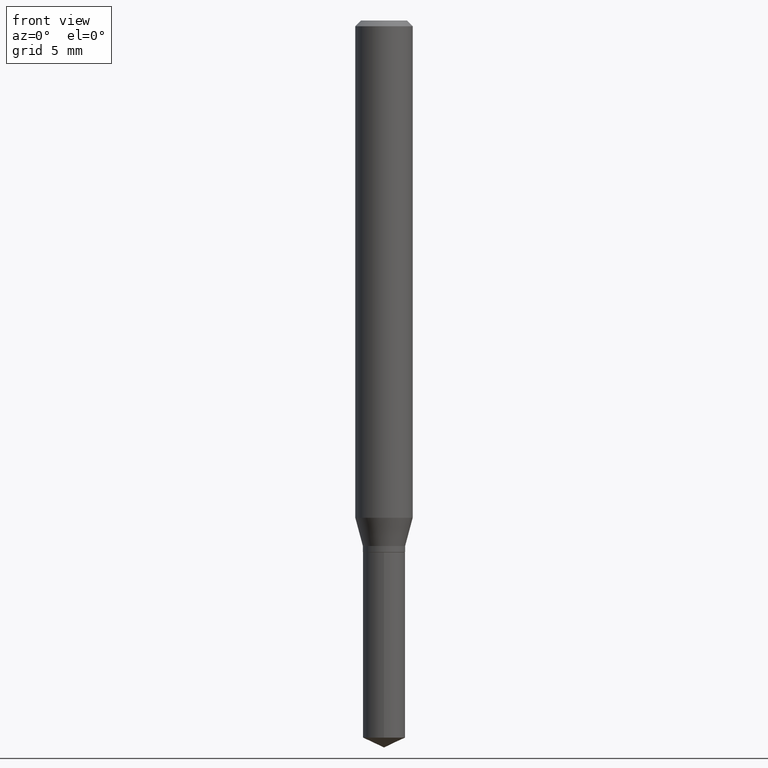
[diagram: clean part render]
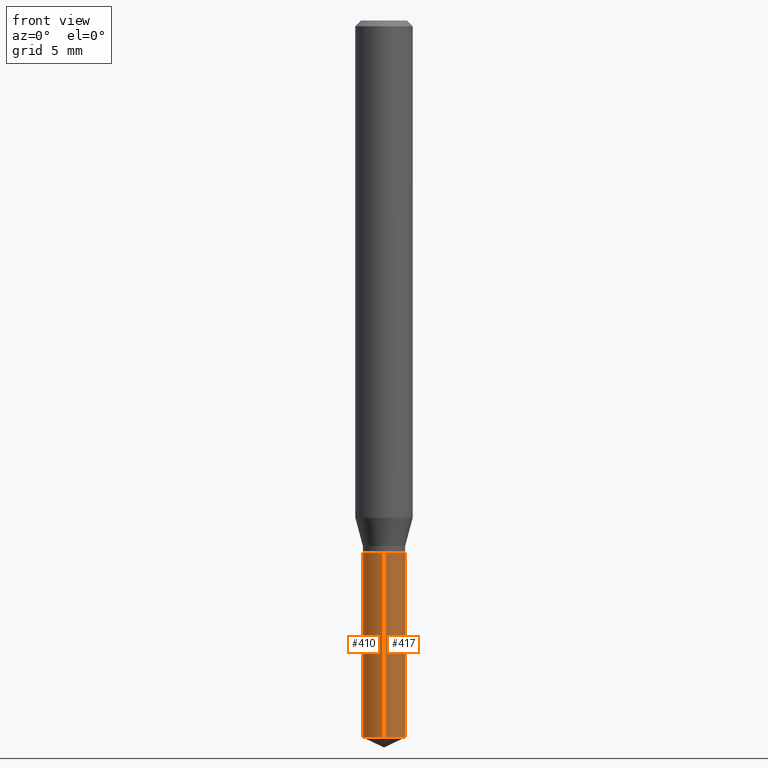
[diagram: same view with one multi-face feature highlighted, each face labeled with its STEP entity id]
A machine part, front view. The highlighted faces form ONE feature: a constant-radius fillet chain: 2 tangent blend faces with common blend radius 1.1049 mm. The faces share edges in the B-rep.
Their STEP definitions:
[1] entity #417 (Cylinder):
#4 = CARTESIAN_POINT ( 'NONE',  ( 3.090860900556795513E-16, 0.04349999999999483447, -1.475815616870258085 ) ) ;
#8 = DIRECTION ( 'NONE',  ( -6.982962677686265133E-15, -1.000000000000000000, 3.140055165131337128E-15 ) ) ;
#87 = AXIS2_PLACEMENT_3D ( 'NONE', #460, #267, #8 ) ;
#101 = DIRECTION ( 'NONE',  ( -2.445458899330790108E-29, 3.491495526022433599E-15, 1.000000000000000000 ) ) ;
#107 = DIRECTION ( 'NONE',  ( -2.445458899330790108E-29, 3.491495526022433599E-15, 1.000000000000000000 ) ) ;
#122 = VECTOR ( 'NONE', #107, 39.37007874015748143 ) ;
#123 = ORIENTED_EDGE ( 'NONE', *, *, #232, .T. ) ;
#157 = EDGE_LOOP ( 'NONE', ( #123, #363, #190, #414 ) ) ;
#162 = EDGE_CURVE ( 'NONE', #193, #386, #376, .T. ) ;
#174 = AXIS2_PLACEMENT_3D ( 'NONE', #319, #282, #436 ) ;
#181 = DIRECTION ( 'NONE',  ( -2.445458899330790108E-29, 3.491495526022433205E-15, 1.000000000000000000 ) ) ;
#190 = ORIENTED_EDGE ( 'NONE', *, *, #484, .F. ) ;
#193 = VERTEX_POINT ( 'NONE', #485 ) ;
#207 = VECTOR ( 'NONE', #101, 39.37007874015748143 ) ;
#215 = VERTEX_POINT ( 'NONE', #339 ) ;
#222 = CARTESIAN_POINT ( 'NONE',  ( -3.037588764793257451E-16, -0.04350000000000382033, -1.094499999999999806 ) ) ;
#228 = EDGE_CURVE ( 'NONE', #467, #215, #377, .T. ) ;
#232 = EDGE_CURVE ( 'NONE', #193, #467, #404, .T. ) ;
#249 = AXIS2_PLACEMENT_3D ( 'NONE', #489, #181, #415 ) ;
#264 = CARTESIAN_POINT ( 'NONE',  ( 3.090860900556702329E-16, 0.04349999999999616673, -1.094500000000000028 ) ) ;
#267 = DIRECTION ( 'NONE',  ( -2.445458899330790108E-29, 3.491495526022433205E-15, 1.000000000000000000 ) ) ;
#279 = CARTESIAN_POINT ( 'NONE',  ( -3.037588764793257451E-16, -0.04350000000000382033, -1.094499999999999806 ) ) ;
#282 = DIRECTION ( 'NONE',  ( -2.445458899330790108E-29, 3.491495526022433205E-15, 1.000000000000000000 ) ) ;
#305 = CIRCLE ( 'NONE', #87, 0.04349999999999999700 ) ;
#319 = CARTESIAN_POINT ( 'NONE',  ( 2.676565608369631794E-29, -3.821426325363822773E-15, -1.094499999999999806 ) ) ;
#339 = CARTESIAN_POINT ( 'NONE',  ( 3.090860900556796499E-16, 0.04349999999999616673, -1.094500000000000028 ) ) ;
#362 = CYLINDRICAL_SURFACE ( 'NONE', #174, 0.04349999999999999700 ) ;
#363 = ORIENTED_EDGE ( 'NONE', *, *, #228, .T. ) ;
#376 = LINE ( 'NONE', #222, #122 ) ;
#377 = LINE ( 'NONE', #264, #207 ) ;
#386 = VERTEX_POINT ( 'NONE', #279 ) ;
#404 = CIRCLE ( 'NONE', #249, 0.04349999999999999700 ) ;
#414 = ORIENTED_EDGE ( 'NONE', *, *, #162, .F. ) ;
#415 = DIRECTION ( 'NONE',  ( -6.982962677686265133E-15, -1.000000000000000000, 6.280110330262674256E-15 ) ) ;
#417 = ADVANCED_FACE ( 'NONE', ( #430 ), #362, .T. ) ;
#430 = FACE_OUTER_BOUND ( 'NONE', #157, .T. ) ;
#436 = DIRECTION ( 'NONE',  ( -6.982962677686265133E-15, -1.000000000000000000, 3.140055165131337128E-15 ) ) ;
#460 = CARTESIAN_POINT ( 'NONE',  ( 2.676565608369631794E-29, -3.821426325363822773E-15, -1.094499999999999806 ) ) ;
#467 = VERTEX_POINT ( 'NONE', #4 ) ;
#484 = EDGE_CURVE ( 'NONE', #386, #215, #305, .T. ) ;
#485 = CARTESIAN_POINT ( 'NONE',  ( -3.037588764793164760E-16, -0.04350000000000515260, -1.475815616870257418 ) ) ;
#489 = CARTESIAN_POINT ( 'NONE',  ( 3.609057277098813731E-29, -5.152788095668811467E-15, -1.475815616870257641 ) ) ;
[2] entity #410 (Cylinder):
#4 = CARTESIAN_POINT ( 'NONE',  ( 3.090860900556795513E-16, 0.04349999999999483447, -1.475815616870258085 ) ) ;
#18 = CARTESIAN_POINT ( 'NONE',  ( 2.676565608369631794E-29, -3.821426325363822773E-15, -1.094499999999999806 ) ) ;
#21 = CIRCLE ( 'NONE', #119, 0.04349999999999999700 ) ;
#33 = ORIENTED_EDGE ( 'NONE', *, *, #360, .F. ) ;
#35 = DIRECTION ( 'NONE',  ( -2.445458899330790108E-29, 3.491495526022433205E-15, 1.000000000000000000 ) ) ;
#77 = DIRECTION ( 'NONE',  ( -2.445458899330790108E-29, 3.491495526022433205E-15, 1.000000000000000000 ) ) ;
#101 = DIRECTION ( 'NONE',  ( -2.445458899330790108E-29, 3.491495526022433599E-15, 1.000000000000000000 ) ) ;
#107 = DIRECTION ( 'NONE',  ( -2.445458899330790108E-29, 3.491495526022433599E-15, 1.000000000000000000 ) ) ;
#119 = AXIS2_PLACEMENT_3D ( 'NONE', #18, #77, #196 ) ;
#122 = VECTOR ( 'NONE', #107, 39.37007874015748143 ) ;
#143 = DIRECTION ( 'NONE',  ( -6.982962677686265133E-15, -1.000000000000000000, 6.280110330262674256E-15 ) ) ;
#153 = ORIENTED_EDGE ( 'NONE', *, *, #228, .F. ) ;
#161 = DIRECTION ( 'NONE',  ( -2.445458899330790108E-29, 3.491495526022433205E-15, 1.000000000000000000 ) ) ;
#162 = EDGE_CURVE ( 'NONE', #193, #386, #376, .T. ) ;
#164 = CARTESIAN_POINT ( 'NONE',  ( 2.676565608369631794E-29, -3.821426325363822773E-15, -1.094499999999999806 ) ) ;
#193 = VERTEX_POINT ( 'NONE', #485 ) ;
#196 = DIRECTION ( 'NONE',  ( -6.982962677686265133E-15, -1.000000000000000000, 3.140055165131337128E-15 ) ) ;
#203 = CIRCLE ( 'NONE', #452, 0.04349999999999999700 ) ;
#207 = VECTOR ( 'NONE', #101, 39.37007874015748143 ) ;
#215 = VERTEX_POINT ( 'NONE', #339 ) ;
#222 = CARTESIAN_POINT ( 'NONE',  ( -3.037588764793257451E-16, -0.04350000000000382033, -1.094499999999999806 ) ) ;
#227 = EDGE_LOOP ( 'NONE', ( #153, #269, #353, #33 ) ) ;
#228 = EDGE_CURVE ( 'NONE', #467, #215, #377, .T. ) ;
#258 = CARTESIAN_POINT ( 'NONE',  ( 3.609057277098813731E-29, -5.152788095668811467E-15, -1.475815616870257641 ) ) ;
#264 = CARTESIAN_POINT ( 'NONE',  ( 3.090860900556702329E-16, 0.04349999999999616673, -1.094500000000000028 ) ) ;
#269 = ORIENTED_EDGE ( 'NONE', *, *, #340, .T. ) ;
#279 = CARTESIAN_POINT ( 'NONE',  ( -3.037588764793257451E-16, -0.04350000000000382033, -1.094499999999999806 ) ) ;
#332 = AXIS2_PLACEMENT_3D ( 'NONE', #164, #161, #397 ) ;
#339 = CARTESIAN_POINT ( 'NONE',  ( 3.090860900556796499E-16, 0.04349999999999616673, -1.094500000000000028 ) ) ;
#340 = EDGE_CURVE ( 'NONE', #467, #193, #203, .T. ) ;
#353 = ORIENTED_EDGE ( 'NONE', *, *, #162, .T. ) ;
#360 = EDGE_CURVE ( 'NONE', #215, #386, #21, .T. ) ;
#376 = LINE ( 'NONE', #222, #122 ) ;
#377 = LINE ( 'NONE', #264, #207 ) ;
#386 = VERTEX_POINT ( 'NONE', #279 ) ;
#397 = DIRECTION ( 'NONE',  ( -6.982962677686265133E-15, -1.000000000000000000, 3.140055165131337128E-15 ) ) ;
#410 = ADVANCED_FACE ( 'NONE', ( #457 ), #423, .T. ) ;
#423 = CYLINDRICAL_SURFACE ( 'NONE', #332, 0.04349999999999999700 ) ;
#452 = AXIS2_PLACEMENT_3D ( 'NONE', #258, #35, #143 ) ;
#457 = FACE_OUTER_BOUND ( 'NONE', #227, .T. ) ;
#467 = VERTEX_POINT ( 'NONE', #4 ) ;
#485 = CARTESIAN_POINT ( 'NONE',  ( -3.037588764793164760E-16, -0.04350000000000515260, -1.475815616870257418 ) ) ;